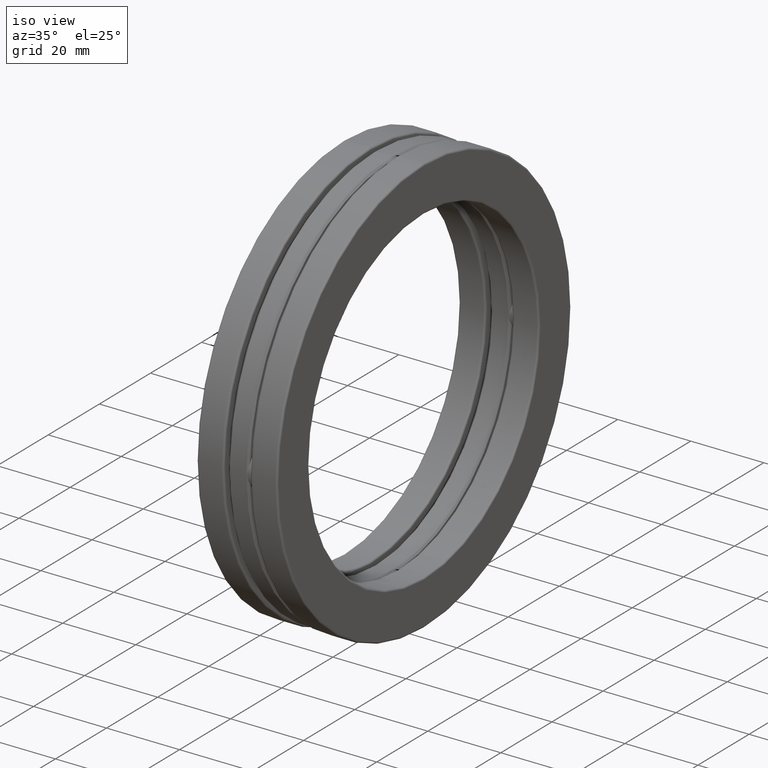
[diagram: clean part render]
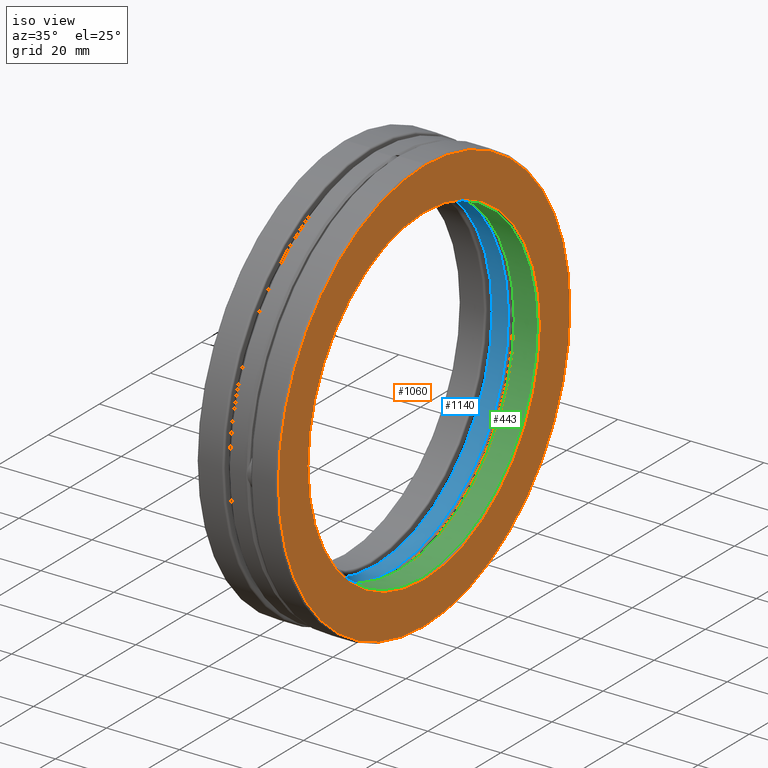
[diagram: same view with three faces highlighted in distinct colors, each labeled with its STEP entity id]
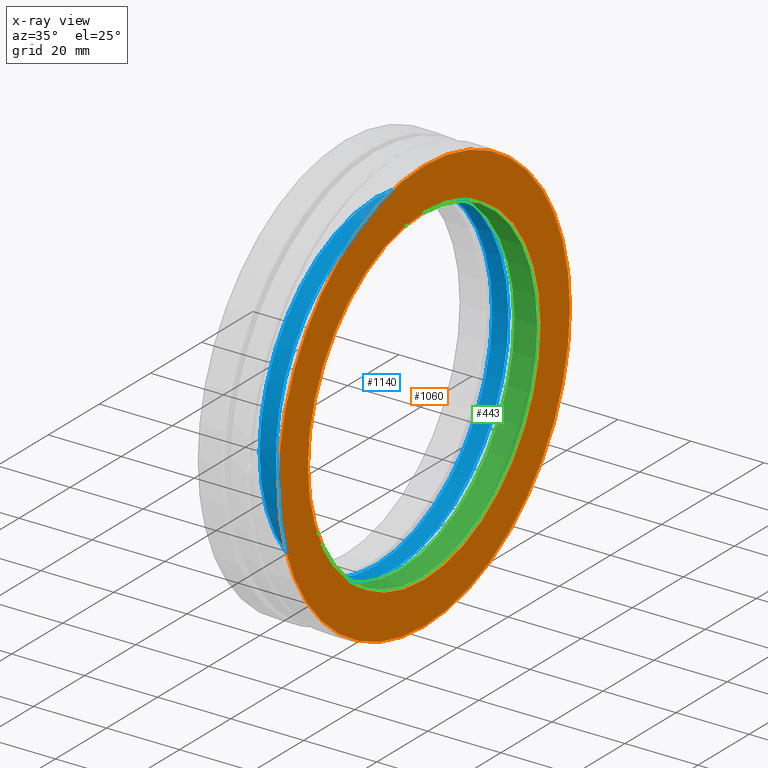
[diagram: x-ray of the same camera — body ghosted, the three highlighted faces saturated]
A machine part, iso view with three faces highlighted in distinct colors.
The next image is the same camera in x-ray (body ghosted, the three faces saturated) — at least one of them is partly hidden behind the body in this view.
Their STEP definitions:

[orange] entity #1060 — the highlighted planar face has unit normal (1, 0, 0).
#10 = DIRECTION ( 'NONE',  ( -1.000000000000000000, -0.0000000000000000000, -0.0000000000000000000 ) ) ;
#35 = CIRCLE ( 'NONE', #42, 1.791500000000000100 ) ;
#42 = AXIS2_PLACEMENT_3D ( 'NONE', #713, #10, #810 ) ;
#84 = CARTESIAN_POINT ( 'NONE',  ( 0.4330000000000002700, 0.0000000000000000000, 0.0000000000000000000 ) ) ;
#92 = ORIENTED_EDGE ( 'NONE', *, *, #1144, .T. ) ;
#160 = FACE_OUTER_BOUND ( 'NONE', #551, .T. ) ;
#193 = VERTEX_POINT ( 'NONE', #626 ) ;
#333 = EDGE_LOOP ( 'NONE', ( #92 ) ) ;
#339 = FACE_BOUND ( 'NONE', #333, .T. ) ;
#356 = VERTEX_POINT ( 'NONE', #444 ) ;
#397 = DIRECTION ( 'NONE',  ( 0.0000000000000000000, 0.0000000000000000000, -1.000000000000000000 ) ) ;
#429 = CIRCLE ( 'NONE', #461, 2.244000000000000200 ) ;
#444 = CARTESIAN_POINT ( 'NONE',  ( 0.4330000000000002700, 0.0000000000000000000, 1.791500000000000100 ) ) ;
#461 = AXIS2_PLACEMENT_3D ( 'NONE', #1199, #1109, #688 ) ;
#551 = EDGE_LOOP ( 'NONE', ( #1186 ) ) ;
#626 = CARTESIAN_POINT ( 'NONE',  ( 0.4330000000000002700, 0.0000000000000000000, 2.244000000000000200 ) ) ;
#688 = DIRECTION ( 'NONE',  ( 0.0000000000000000000, 0.0000000000000000000, 1.000000000000000000 ) ) ;
#713 = CARTESIAN_POINT ( 'NONE',  ( 0.4330000000000002700, 0.0000000000000000000, 0.0000000000000000000 ) ) ;
#785 = DIRECTION ( 'NONE',  ( 1.000000000000000000, 0.0000000000000000000, 0.0000000000000000000 ) ) ;
#810 = DIRECTION ( 'NONE',  ( 0.0000000000000000000, 0.0000000000000000000, 1.000000000000000000 ) ) ;
#889 = PLANE ( 'NONE',  #1282 ) ;
#1029 = EDGE_CURVE ( 'NONE', #193, #193, #429, .T. ) ;
#1060 = ADVANCED_FACE ( 'NONE', ( #339, #160 ), #889, .T. ) ;
#1109 = DIRECTION ( 'NONE',  ( -1.000000000000000000, -0.0000000000000000000, -0.0000000000000000000 ) ) ;
#1144 = EDGE_CURVE ( 'NONE', #356, #356, #35, .T. ) ;
#1186 = ORIENTED_EDGE ( 'NONE', *, *, #1029, .F. ) ;
#1199 = CARTESIAN_POINT ( 'NONE',  ( 0.4330000000000002700, 0.0000000000000000000, 0.0000000000000000000 ) ) ;
#1282 = AXIS2_PLACEMENT_3D ( 'NONE', #84, #785, #397 ) ;

[blue] entity #1140 — the highlighted cylindrical surface (bore or boss wall) has radius 45.5041 mm, axis along (-1, -0, -0).
#4 = DIRECTION ( 'NONE',  ( -1.000000000000000000, -0.0000000000000000000, -0.0000000000000000000 ) ) ;
#132 = CARTESIAN_POINT ( 'NONE',  ( 0.08825000000000003700, 0.0000000000000000000, 1.791500000000000300 ) ) ;
#173 = EDGE_LOOP ( 'NONE', ( #984 ) ) ;
#200 = AXIS2_PLACEMENT_3D ( 'NONE', #1012, #710, #712 ) ;
#216 = DIRECTION ( 'NONE',  ( 0.0000000000000000000, 0.0000000000000000000, 1.000000000000000000 ) ) ;
#232 = CARTESIAN_POINT ( 'NONE',  ( -0.08824999999999996700, 0.0000000000000000000, 1.791500000000000300 ) ) ;
#301 = EDGE_LOOP ( 'NONE', ( #954 ) ) ;
#306 = FACE_OUTER_BOUND ( 'NONE', #173, .T. ) ;
#316 = DIRECTION ( 'NONE',  ( -1.000000000000000000, -0.0000000000000000000, -0.0000000000000000000 ) ) ;
#320 = VERTEX_POINT ( 'NONE', #232 ) ;
#601 = EDGE_CURVE ( 'NONE', #320, #320, #1116, .T. ) ;
#629 = FACE_OUTER_BOUND ( 'NONE', #301, .T. ) ;
#637 = EDGE_CURVE ( 'NONE', #709, #709, #1261, .T. ) ;
#709 = VERTEX_POINT ( 'NONE', #132 ) ;
#710 = DIRECTION ( 'NONE',  ( -1.000000000000000000, -0.0000000000000000000, -0.0000000000000000000 ) ) ;
#712 = DIRECTION ( 'NONE',  ( 0.0000000000000000000, 0.0000000000000000000, 1.000000000000000000 ) ) ;
#725 = AXIS2_PLACEMENT_3D ( 'NONE', #796, #316, #906 ) ;
#757 = CYLINDRICAL_SURFACE ( 'NONE', #200, 1.791500000000000300 ) ;
#796 = CARTESIAN_POINT ( 'NONE',  ( -0.08824999999999996700, 0.0000000000000000000, 0.0000000000000000000 ) ) ;
#801 = CARTESIAN_POINT ( 'NONE',  ( 0.08825000000000003700, 0.0000000000000000000, 0.0000000000000000000 ) ) ;
#906 = DIRECTION ( 'NONE',  ( 0.0000000000000000000, 0.0000000000000000000, 1.000000000000000000 ) ) ;
#954 = ORIENTED_EDGE ( 'NONE', *, *, #637, .F. ) ;
#984 = ORIENTED_EDGE ( 'NONE', *, *, #601, .T. ) ;
#1012 = CARTESIAN_POINT ( 'NONE',  ( 0.0000000000000000000, 0.0000000000000000000, 0.0000000000000000000 ) ) ;
#1116 = CIRCLE ( 'NONE', #725, 1.791500000000000300 ) ;
#1140 = ADVANCED_FACE ( 'NONE', ( #629, #306 ), #757, .F. ) ;
#1185 = AXIS2_PLACEMENT_3D ( 'NONE', #801, #4, #216 ) ;
#1261 = CIRCLE ( 'NONE', #1185, 1.791500000000000300 ) ;

[green] entity #443 — the highlighted cylindrical surface (bore or boss wall) has radius 44.9961 mm, axis along (-1, -0, -0).
#64 = EDGE_LOOP ( 'NONE', ( #726 ) ) ;
#83 = DIRECTION ( 'NONE',  ( -1.000000000000000000, -0.0000000000000000000, -0.0000000000000000000 ) ) ;
#117 = AXIS2_PLACEMENT_3D ( 'NONE', #490, #83, #1095 ) ;
#141 = FACE_OUTER_BOUND ( 'NONE', #369, .T. ) ;
#354 = CYLINDRICAL_SURFACE ( 'NONE', #1245, 1.771499999999999900 ) ;
#360 = EDGE_CURVE ( 'NONE', #926, #926, #1070, .T. ) ;
#369 = EDGE_LOOP ( 'NONE', ( #883 ) ) ;
#416 = CARTESIAN_POINT ( 'NONE',  ( 0.4130000000000010300, 0.0000000000000000000, 0.0000000000000000000 ) ) ;
#443 = ADVANCED_FACE ( 'NONE', ( #719, #141 ), #354, .F. ) ;
#489 = DIRECTION ( 'NONE',  ( -1.000000000000000000, -0.0000000000000000000, -0.0000000000000000000 ) ) ;
#490 = CARTESIAN_POINT ( 'NONE',  ( 0.1643362200000008100, 0.0000000000000000000, 0.0000000000000000000 ) ) ;
#492 = DIRECTION ( 'NONE',  ( 0.0000000000000000000, 0.0000000000000000000, 1.000000000000000000 ) ) ;
#526 = AXIS2_PLACEMENT_3D ( 'NONE', #416, #611, #911 ) ;
#547 = CARTESIAN_POINT ( 'NONE',  ( 0.4130000000000010300, 0.0000000000000000000, 1.771499999999999900 ) ) ;
#611 = DIRECTION ( 'NONE',  ( -1.000000000000000000, -0.0000000000000000000, -0.0000000000000000000 ) ) ;
#719 = FACE_OUTER_BOUND ( 'NONE', #64, .T. ) ;
#726 = ORIENTED_EDGE ( 'NONE', *, *, #360, .T. ) ;
#883 = ORIENTED_EDGE ( 'NONE', *, *, #1178, .F. ) ;
#911 = DIRECTION ( 'NONE',  ( 0.0000000000000000000, 0.0000000000000000000, 1.000000000000000000 ) ) ;
#926 = VERTEX_POINT ( 'NONE', #1050 ) ;
#1050 = CARTESIAN_POINT ( 'NONE',  ( 0.1643362200000008100, 0.0000000000000000000, 1.771499999999999900 ) ) ;
#1070 = CIRCLE ( 'NONE', #117, 1.771499999999999900 ) ;
#1095 = DIRECTION ( 'NONE',  ( 0.0000000000000000000, 0.0000000000000000000, 1.000000000000000000 ) ) ;
#1147 = CARTESIAN_POINT ( 'NONE',  ( 0.0000000000000000000, 0.0000000000000000000, 0.0000000000000000000 ) ) ;
#1178 = EDGE_CURVE ( 'NONE', #1218, #1218, #1264, .T. ) ;
#1218 = VERTEX_POINT ( 'NONE', #547 ) ;
#1245 = AXIS2_PLACEMENT_3D ( 'NONE', #1147, #489, #492 ) ;
#1264 = CIRCLE ( 'NONE', #526, 1.771499999999999900 ) ;